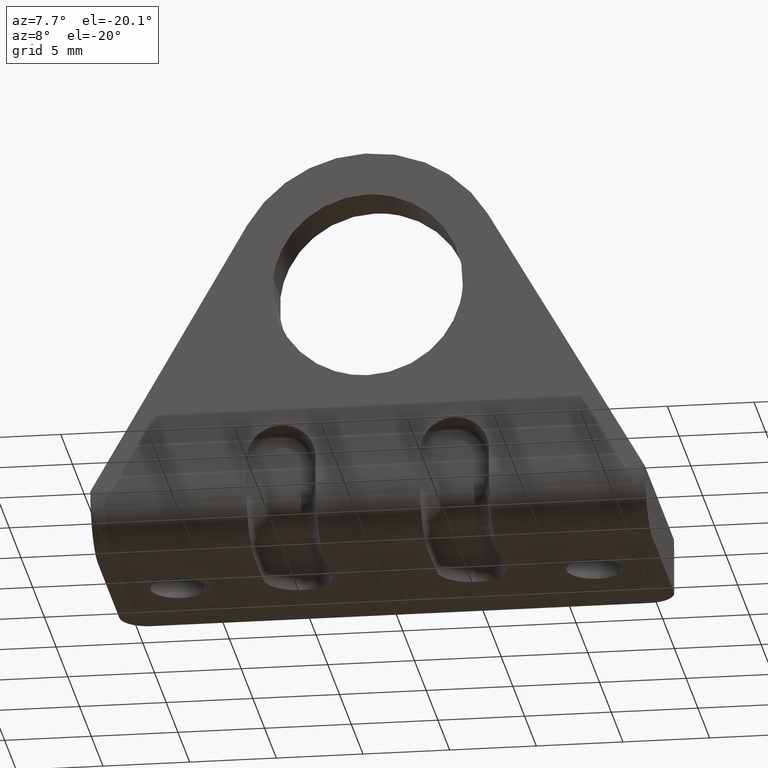
[diagram: clean part render]
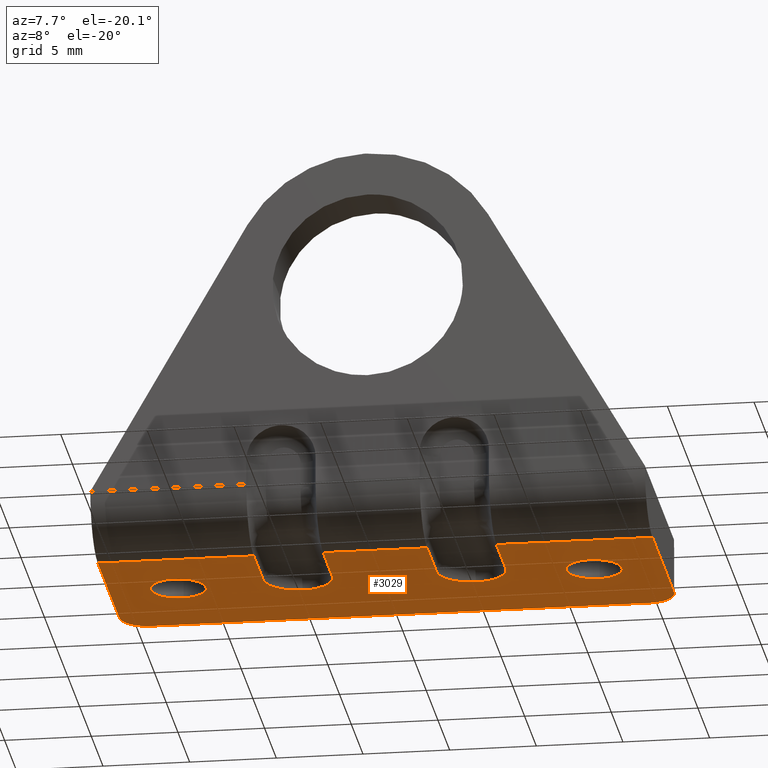
[diagram: same view with one face highlighted and labeled with its STEP entity id]
A machine part, auxiliary view. The second image highlights one B-rep face of the part: STEP entity #3029.
In plain terms, the highlighted face is a freeform B-spline surface patch.
Its self-contained STEP definition (entity closure, byte-faithful):
#100=CARTESIAN_POINT('',(-11.902322336661010,9.597015677469898,-1.179612E-016));
#101=VERTEX_POINT('',#100);
#107=CARTESIAN_POINT('',(-10.400000000000000,8.0,0.0));
#108=VERTEX_POINT('',#107);
#109=CARTESIAN_POINT('',(-10.400000000000000,8.0,0.0));
#110=CARTESIAN_POINT('',(-10.400000000000000,9.505129706891959,0.0));
#111=CARTESIAN_POINT('',(-11.902322336661006,9.597015677469898,-1.179612E-016));
#119=(BOUNDED_CURVE()B_SPLINE_CURVE(2,(#109,#110,#111),.UNSPECIFIED.,.F.,.U.)B_SPLINE_CURVE_WITH_KNOTS((3,3),(0.500000000000000,0.739332962223986),.UNSPECIFIED.)CURVE()GEOMETRIC_REPRESENTATION_ITEM()RATIONAL_B_SPLINE_CURVE((1.0,0.719603993304233,0.976072041634662))REPRESENTATION_ITEM(''));
#120=EDGE_CURVE('',#108,#101,#119,.T.);
#122=CARTESIAN_POINT('',(-12.188854775463360,6.411184757819625,-1.135771E-016));
#123=VERTEX_POINT('',#122);
#124=CARTESIAN_POINT('',(-12.188854775463362,6.411184757819625,-1.135771E-016));
#125=CARTESIAN_POINT('',(-12.094758591455742,6.400000000000000,0.0));
#126=CARTESIAN_POINT('',(-12.0,6.400000000000000,0.0));
#127=CARTESIAN_POINT('',(-10.400000000000000,6.400000000000000,0.0));
#128=CARTESIAN_POINT('',(-10.400000000000000,8.0,0.0));
#136=(BOUNDED_CURVE()B_SPLINE_CURVE(2,(#124,#125,#126,#127,#128),.UNSPECIFIED.,.F.,.U.)B_SPLINE_CURVE_WITH_KNOTS((3,2,3),(0.229562473512975,0.250000000000000,0.500000000000000),.UNSPECIFIED.)CURVE()GEOMETRIC_REPRESENTATION_ITEM()RATIONAL_B_SPLINE_CURVE((0.956026754182654,0.976055948330520,1.0,0.707106781186548,1.0))REPRESENTATION_ITEM(''));
#137=EDGE_CURVE('',#123,#108,#136,.T.);
#181=CARTESIAN_POINT('',(-13.600000000000000,8.0,0.0));
#182=VERTEX_POINT('',#181);
#183=CARTESIAN_POINT('',(-13.600000000000000,8.0,0.0));
#184=CARTESIAN_POINT('',(-13.600000000000003,6.578920758500414,0.0));
#185=CARTESIAN_POINT('',(-12.188854775463358,6.411184757819625,-1.135771E-016));
#193=(BOUNDED_CURVE()B_SPLINE_CURVE(2,(#183,#184,#185),.UNSPECIFIED.,.F.,.U.)B_SPLINE_CURVE_WITH_KNOTS((3,3),(0.0,0.229562473512975),.UNSPECIFIED.)CURVE()GEOMETRIC_REPRESENTATION_ITEM()RATIONAL_B_SPLINE_CURVE((1.0,0.731050832856027,0.956026754182654))REPRESENTATION_ITEM(''));
#194=EDGE_CURVE('',#182,#123,#193,.T.);
#196=CARTESIAN_POINT('',(-11.902322336661010,9.597015677469898,-1.179612E-016));
#197=CARTESIAN_POINT('',(-11.951115578638808,9.600000000000003,0.0));
#198=CARTESIAN_POINT('',(-12.0,9.600000000000001,0.0));
#199=CARTESIAN_POINT('',(-13.600000000000003,9.600000000000001,0.0));
#200=CARTESIAN_POINT('',(-13.600000000000000,8.0,0.0));
#208=(BOUNDED_CURVE()B_SPLINE_CURVE(2,(#196,#197,#198,#199,#200),.UNSPECIFIED.,.F.,.U.)B_SPLINE_CURVE_WITH_KNOTS((3,2,3),(0.739332962223985,0.750000000000000,1.0),.UNSPECIFIED.)CURVE()GEOMETRIC_REPRESENTATION_ITEM()RATIONAL_B_SPLINE_CURVE((0.976072041634661,0.987502787882313,1.0,0.707106781186548,1.0))REPRESENTATION_ITEM(''));
#209=EDGE_CURVE('',#101,#182,#208,.T.);
#286=CARTESIAN_POINT('',(12.097677663338990,9.597015677469898,-1.179612E-016));
#287=VERTEX_POINT('',#286);
#293=CARTESIAN_POINT('',(13.600000000000000,8.0,0.0));
#294=VERTEX_POINT('',#293);
#295=CARTESIAN_POINT('',(13.600000000000000,8.0,0.0));
#296=CARTESIAN_POINT('',(13.600000000000003,9.505129706891959,0.0));
#297=CARTESIAN_POINT('',(12.097677663338995,9.597015677469898,-1.179612E-016));
#305=(BOUNDED_CURVE()B_SPLINE_CURVE(2,(#295,#296,#297),.UNSPECIFIED.,.F.,.U.)B_SPLINE_CURVE_WITH_KNOTS((3,3),(0.500000000000000,0.739332962223986),.UNSPECIFIED.)CURVE()GEOMETRIC_REPRESENTATION_ITEM()RATIONAL_B_SPLINE_CURVE((1.0,0.719603993304233,0.976072041634662))REPRESENTATION_ITEM(''));
#306=EDGE_CURVE('',#294,#287,#305,.T.);
#308=CARTESIAN_POINT('',(11.811145224536640,6.411184757819625,-1.135771E-016));
#309=VERTEX_POINT('',#308);
#310=CARTESIAN_POINT('',(11.811145224536642,6.411184757819625,-1.135771E-016));
#311=CARTESIAN_POINT('',(11.905241408544265,6.400000000000000,0.0));
#312=CARTESIAN_POINT('',(12.0,6.400000000000000,0.0));
#313=CARTESIAN_POINT('',(13.600000000000003,6.400000000000000,0.0));
#314=CARTESIAN_POINT('',(13.600000000000000,8.0,0.0));
#322=(BOUNDED_CURVE()B_SPLINE_CURVE(2,(#310,#311,#312,#313,#314),.UNSPECIFIED.,.F.,.U.)B_SPLINE_CURVE_WITH_KNOTS((3,2,3),(0.229562473512975,0.250000000000000,0.500000000000000),.UNSPECIFIED.)CURVE()GEOMETRIC_REPRESENTATION_ITEM()RATIONAL_B_SPLINE_CURVE((0.956026754182654,0.976055948330520,1.0,0.707106781186548,1.0))REPRESENTATION_ITEM(''));
#323=EDGE_CURVE('',#309,#294,#322,.T.);
#367=CARTESIAN_POINT('',(10.400000000000000,8.0,0.0));
#368=VERTEX_POINT('',#367);
#369=CARTESIAN_POINT('',(10.400000000000000,8.0,0.0));
#370=CARTESIAN_POINT('',(10.400000000000000,6.578920758500414,0.0));
#371=CARTESIAN_POINT('',(11.811145224536638,6.411184757819625,-1.135771E-016));
#379=(BOUNDED_CURVE()B_SPLINE_CURVE(2,(#369,#370,#371),.UNSPECIFIED.,.F.,.U.)B_SPLINE_CURVE_WITH_KNOTS((3,3),(0.0,0.229562473512975),.UNSPECIFIED.)CURVE()GEOMETRIC_REPRESENTATION_ITEM()RATIONAL_B_SPLINE_CURVE((1.0,0.731050832856027,0.956026754182654))REPRESENTATION_ITEM(''));
#380=EDGE_CURVE('',#368,#309,#379,.T.);
#382=CARTESIAN_POINT('',(12.097677663338992,9.597015677469898,-1.179612E-016));
#383=CARTESIAN_POINT('',(12.048884421361201,9.600000000000001,0.0));
#384=CARTESIAN_POINT('',(12.0,9.600000000000001,0.0));
#385=CARTESIAN_POINT('',(10.400000000000000,9.600000000000001,0.0));
#386=CARTESIAN_POINT('',(10.400000000000000,8.0,0.0));
#394=(BOUNDED_CURVE()B_SPLINE_CURVE(2,(#382,#383,#384,#385,#386),.UNSPECIFIED.,.F.,.U.)B_SPLINE_CURVE_WITH_KNOTS((3,2,3),(0.739332962223985,0.750000000000000,1.0),.UNSPECIFIED.)CURVE()GEOMETRIC_REPRESENTATION_ITEM()RATIONAL_B_SPLINE_CURVE((0.976072041634661,0.987502787882313,1.0,0.707106781186548,1.0))REPRESENTATION_ITEM(''));
#395=EDGE_CURVE('',#287,#368,#394,.T.);
#652=CARTESIAN_POINT('',(-7.0,7.200000000000000,4.408583E-016));
#653=VERTEX_POINT('',#652);
#667=CARTESIAN_POINT('',(-5.0,9.199999999999999,2.775558E-016));
#668=VERTEX_POINT('',#667);
#669=CARTESIAN_POINT('',(-5.0,9.199999999999999,0.0));
#670=CARTESIAN_POINT('',(-6.999999999999999,9.199999999999999,0.0));
#671=CARTESIAN_POINT('',(-7.0,7.200000000000000,0.0));
#679=(BOUNDED_CURVE()B_SPLINE_CURVE(2,(#669,#670,#671),.UNSPECIFIED.,.F.,.U.)B_SPLINE_CURVE_WITH_KNOTS((3,3),(0.500000000000000,1.0),.UNSPECIFIED.)CURVE()GEOMETRIC_REPRESENTATION_ITEM()RATIONAL_B_SPLINE_CURVE((1.0,0.707106781186548,1.0))REPRESENTATION_ITEM(''));
#680=EDGE_CURVE('',#668,#653,#679,.T.);
#747=CARTESIAN_POINT('',(-3.000000000000115,7.200000000000000,4.408583E-016));
#748=VERTEX_POINT('',#747);
#749=CARTESIAN_POINT('',(-3.000000000000115,7.200000000000000,4.408583E-016));
#750=CARTESIAN_POINT('',(-3.000000000000000,9.200000000000001,0.0));
#751=CARTESIAN_POINT('',(-5.0,9.199999999999999,0.0));
#759=(BOUNDED_CURVE()B_SPLINE_CURVE(2,(#749,#750,#751),.UNSPECIFIED.,.F.,.U.)B_SPLINE_CURVE_WITH_KNOTS((3,3),(0.0,0.500000000000000),.UNSPECIFIED.)CURVE()GEOMETRIC_REPRESENTATION_ITEM()RATIONAL_B_SPLINE_CURVE((1.0,0.707106781186547,1.0))REPRESENTATION_ITEM(''));
#760=EDGE_CURVE('',#748,#668,#759,.T.);
#828=CARTESIAN_POINT('',(3.000000000000115,7.200000000000000,4.408583E-016));
#829=VERTEX_POINT('',#828);
#843=CARTESIAN_POINT('',(5.0,9.199999999999999,2.775558E-016));
#844=VERTEX_POINT('',#843);
#845=CARTESIAN_POINT('',(5.0,9.199999999999999,0.0));
#846=CARTESIAN_POINT('',(3.0,9.199999999999999,0.0));
#847=CARTESIAN_POINT('',(3.000000000000115,7.200000000000000,4.408583E-016));
#855=(BOUNDED_CURVE()B_SPLINE_CURVE(2,(#845,#846,#847),.UNSPECIFIED.,.F.,.U.)B_SPLINE_CURVE_WITH_KNOTS((3,3),(0.500000000000000,1.0),.UNSPECIFIED.)CURVE()GEOMETRIC_REPRESENTATION_ITEM()RATIONAL_B_SPLINE_CURVE((1.0,0.707106781186548,1.0))REPRESENTATION_ITEM(''));
#856=EDGE_CURVE('',#844,#829,#855,.T.);
#923=CARTESIAN_POINT('',(7.0,7.200000000000000,4.408583E-016));
#924=VERTEX_POINT('',#923);
#925=CARTESIAN_POINT('',(7.0,7.200000000000000,0.0));
#926=CARTESIAN_POINT('',(6.999999999999999,9.200000000000001,0.0));
#927=CARTESIAN_POINT('',(5.0,9.199999999999999,0.0));
#935=(BOUNDED_CURVE()B_SPLINE_CURVE(2,(#925,#926,#927),.UNSPECIFIED.,.F.,.U.)B_SPLINE_CURVE_WITH_KNOTS((3,3),(0.0,0.500000000000000),.UNSPECIFIED.)CURVE()GEOMETRIC_REPRESENTATION_ITEM()RATIONAL_B_SPLINE_CURVE((1.0,0.707106781186547,1.0))REPRESENTATION_ITEM(''));
#936=EDGE_CURVE('',#924,#844,#935,.T.);
#969=CARTESIAN_POINT('',(-3.000000000000115,3.199999999999805,-1.154632E-014));
#970=VERTEX_POINT('',#969);
#971=CARTESIAN_POINT('',(-3.000000000000115,3.199999999999805,-1.154632E-014));
#972=CARTESIAN_POINT('',(-3.000000000000115,7.200000000000000,4.408583E-016));
#973=QUASI_UNIFORM_CURVE('',1,(#971,#972),.UNSPECIFIED.,.F.,.U.);
#974=EDGE_CURVE('',#970,#748,#973,.T.);
#1124=CARTESIAN_POINT('',(-7.0,3.199999999999805,-1.154632E-014));
#1125=VERTEX_POINT('',#1124);
#1139=CARTESIAN_POINT('',(-7.0,3.199999999999805,-1.154632E-014));
#1140=CARTESIAN_POINT('',(-7.0,7.200000000000000,4.408583E-016));
#1141=QUASI_UNIFORM_CURVE('',1,(#1139,#1140),.UNSPECIFIED.,.F.,.U.);
#1142=EDGE_CURVE('',#1125,#653,#1141,.T.);
#1536=CARTESIAN_POINT('',(7.0,3.199999999999805,-1.154632E-014));
#1537=VERTEX_POINT('',#1536);
#1643=CARTESIAN_POINT('',(7.0,3.199999999999805,-1.154632E-014));
#1644=CARTESIAN_POINT('',(7.0,7.200000000000000,4.408583E-016));
#1645=QUASI_UNIFORM_CURVE('',1,(#1643,#1644),.UNSPECIFIED.,.F.,.U.);
#1646=EDGE_CURVE('',#1537,#924,#1645,.T.);
#1674=CARTESIAN_POINT('',(3.000000000000115,3.199999999999805,-1.154632E-014));
#1675=VERTEX_POINT('',#1674);
#1738=CARTESIAN_POINT('',(3.000000000000115,3.199999999999805,-1.154632E-014));
#1739=CARTESIAN_POINT('',(3.000000000000115,7.200000000000000,4.408583E-016));
#1740=QUASI_UNIFORM_CURVE('',1,(#1738,#1739),.UNSPECIFIED.,.F.,.U.);
#1741=EDGE_CURVE('',#1675,#829,#1740,.T.);
#2615=CARTESIAN_POINT('',(-14.400000000000000,14.0,0.0));
#2616=VERTEX_POINT('',#2615);
#2622=CARTESIAN_POINT('',(-16.0,12.399999999999860,0.0));
#2623=VERTEX_POINT('',#2622);
#2624=CARTESIAN_POINT('',(-16.0,12.399999999999860,0.0));
#2625=CARTESIAN_POINT('',(-15.999999999999998,13.999999999999858,0.0));
#2626=CARTESIAN_POINT('',(-14.400000000000000,14.0,0.0));
#2634=(BOUNDED_CURVE()B_SPLINE_CURVE(2,(#2624,#2625,#2626),.UNSPECIFIED.,.F.,.U.)CURVE()GEOMETRIC_REPRESENTATION_ITEM()QUASI_UNIFORM_CURVE()RATIONAL_B_SPLINE_CURVE((1.0,0.707106781186548,1.0))REPRESENTATION_ITEM(''));
#2635=EDGE_CURVE('',#2623,#2616,#2634,.T.);
#2659=CARTESIAN_POINT('',(14.400000000000000,14.0,0.0));
#2660=VERTEX_POINT('',#2659);
#2661=CARTESIAN_POINT('',(16.0,12.399999999999860,0.0));
#2662=VERTEX_POINT('',#2661);
#2663=CARTESIAN_POINT('',(14.400000000000000,14.0,0.0));
#2664=CARTESIAN_POINT('',(15.999999999999998,13.999999999999858,0.0));
#2665=CARTESIAN_POINT('',(16.0,12.399999999999860,0.0));
#2673=(BOUNDED_CURVE()B_SPLINE_CURVE(2,(#2663,#2664,#2665),.UNSPECIFIED.,.F.,.U.)CURVE()GEOMETRIC_REPRESENTATION_ITEM()QUASI_UNIFORM_CURVE()RATIONAL_B_SPLINE_CURVE((1.0,0.707106781186548,1.0))REPRESENTATION_ITEM(''));
#2674=EDGE_CURVE('',#2660,#2662,#2673,.T.);
#2721=CARTESIAN_POINT('',(16.0,3.200000000000000,0.0));
#2722=VERTEX_POINT('',#2721);
#2723=CARTESIAN_POINT('',(16.0,3.200000000000000,0.0));
#2724=CARTESIAN_POINT('',(7.0,3.199999999999805,-1.154632E-014));
#2725=QUASI_UNIFORM_CURVE('',1,(#2723,#2724),.UNSPECIFIED.,.F.,.U.);
#2726=EDGE_CURVE('',#2722,#1537,#2725,.T.);
#2934=CARTESIAN_POINT('',(-14.400000000000000,14.0,0.0));
#2935=CARTESIAN_POINT('',(14.400000000000000,14.0,0.0));
#2936=QUASI_UNIFORM_CURVE('',1,(#2934,#2935),.UNSPECIFIED.,.F.,.U.);
#2937=EDGE_CURVE('',#2616,#2660,#2936,.T.);
#2968=CARTESIAN_POINT('',(16.0,12.399999999999860,0.0));
#2969=CARTESIAN_POINT('',(16.0,3.200000000000000,0.0));
#2970=QUASI_UNIFORM_CURVE('',1,(#2968,#2969),.UNSPECIFIED.,.F.,.U.);
#2971=EDGE_CURVE('',#2662,#2722,#2970,.T.);
#2980=CARTESIAN_POINT('',(17.598399937977788,2.660540020932290,0.0));
#2981=CARTESIAN_POINT('',(-17.598400796284679,2.660540020932290,0.0));
#2982=CARTESIAN_POINT('',(17.598399937977788,14.539460268746090,0.0));
#2983=CARTESIAN_POINT('',(-17.598400796284679,14.539460268746090,0.0));
#2984=B_SPLINE_SURFACE_WITH_KNOTS('',1,1,((#2980,#2982),(#2981,#2983)),.UNSPECIFIED.,.F.,.F.,.U.,(2,2),(2,2),(0.0,35.196800734262467),(0.0,11.878920247813801),.UNSPECIFIED.);
#2985=ORIENTED_EDGE('',*,*,#1142,.F.);
#2986=CARTESIAN_POINT('',(-16.0,3.200000000000000,0.0));
#2987=VERTEX_POINT('',#2986);
#2988=CARTESIAN_POINT('',(-7.0,3.199999999999805,-1.154632E-014));
#2989=CARTESIAN_POINT('',(-16.0,3.200000000000000,0.0));
#2990=QUASI_UNIFORM_CURVE('',1,(#2988,#2989),.UNSPECIFIED.,.F.,.U.);
#2991=EDGE_CURVE('',#1125,#2987,#2990,.T.);
#2992=ORIENTED_EDGE('',*,*,#2991,.T.);
#2993=CARTESIAN_POINT('',(-16.0,12.399999999999860,0.0));
#2994=CARTESIAN_POINT('',(-16.0,3.200000000000000,0.0));
#2995=QUASI_UNIFORM_CURVE('',1,(#2993,#2994),.UNSPECIFIED.,.F.,.U.);
#2996=EDGE_CURVE('',#2623,#2987,#2995,.T.);
#2997=ORIENTED_EDGE('',*,*,#2996,.F.);
#2998=ORIENTED_EDGE('',*,*,#2635,.T.);
#2999=ORIENTED_EDGE('',*,*,#2937,.T.);
#3000=ORIENTED_EDGE('',*,*,#2674,.T.);
#3001=ORIENTED_EDGE('',*,*,#2971,.T.);
#3002=ORIENTED_EDGE('',*,*,#2726,.T.);
#3003=ORIENTED_EDGE('',*,*,#1646,.T.);
#3004=ORIENTED_EDGE('',*,*,#936,.T.);
#3005=ORIENTED_EDGE('',*,*,#856,.T.);
#3006=ORIENTED_EDGE('',*,*,#1741,.F.);
#3007=CARTESIAN_POINT('',(3.000000000000115,3.199999999999805,-1.154632E-014));
#3008=CARTESIAN_POINT('',(-3.000000000000115,3.199999999999805,-1.154632E-014));
#3009=QUASI_UNIFORM_CURVE('',1,(#3007,#3008),.UNSPECIFIED.,.F.,.U.);
#3010=EDGE_CURVE('',#1675,#970,#3009,.T.);
#3011=ORIENTED_EDGE('',*,*,#3010,.T.);
#3012=ORIENTED_EDGE('',*,*,#974,.T.);
#3013=ORIENTED_EDGE('',*,*,#760,.T.);
#3014=ORIENTED_EDGE('',*,*,#680,.T.);
#3015=EDGE_LOOP('',(#2985,#2992,#2997,#2998,#2999,#3000,#3001,#3002,#3003,#3004,#3005,#3006,#3011,#3012,#3013,#3014));
#3016=FACE_OUTER_BOUND('',#3015,.T.);
#3017=ORIENTED_EDGE('',*,*,#306,.T.);
#3018=ORIENTED_EDGE('',*,*,#395,.T.);
#3019=ORIENTED_EDGE('',*,*,#380,.T.);
#3020=ORIENTED_EDGE('',*,*,#323,.T.);
#3021=EDGE_LOOP('',(#3017,#3018,#3019,#3020));
#3022=FACE_BOUND('',#3021,.T.);
#3023=ORIENTED_EDGE('',*,*,#120,.T.);
#3024=ORIENTED_EDGE('',*,*,#209,.T.);
#3025=ORIENTED_EDGE('',*,*,#194,.T.);
#3026=ORIENTED_EDGE('',*,*,#137,.T.);
#3027=EDGE_LOOP('',(#3023,#3024,#3025,#3026));
#3028=FACE_BOUND('',#3027,.T.);
#3029=ADVANCED_FACE('',(#3016,#3022,#3028),#2984,.T.);